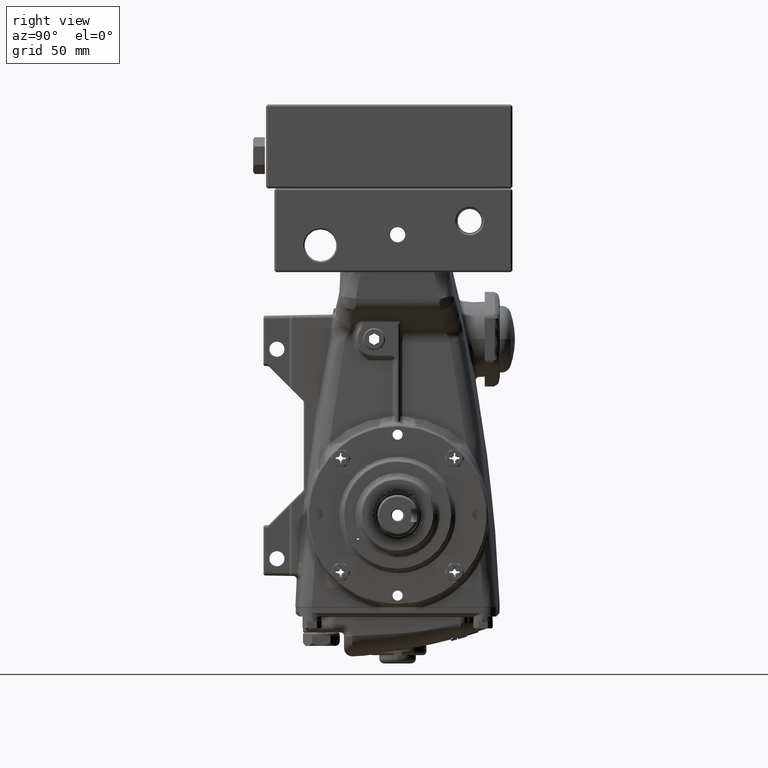
[diagram: clean part render]
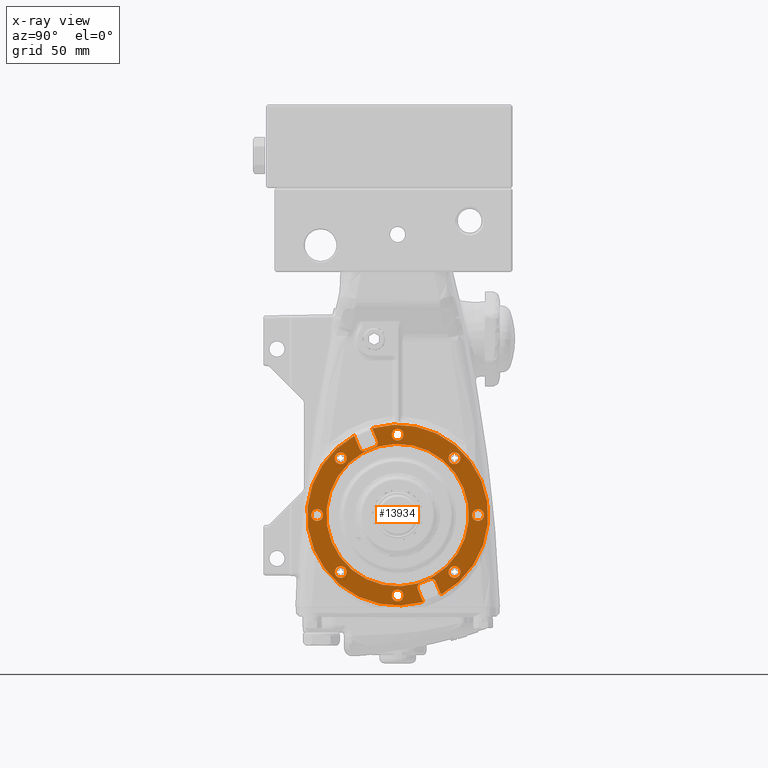
[diagram: x-ray — body ghosted, one internal face saturated and labeled with its STEP entity id]
A machine part, right view, then the same camera in x-ray: the body is ghosted and one INTERNAL B-rep face — a face not visible from any outside direction — is saturated and labeled: STEP entity #13934.
In plain terms, the highlighted planar face has unit normal (-1, -0, 0).
Its self-contained STEP definition (entity closure, byte-faithful):
#766 = CARTESIAN_POINT ( 'NONE',  ( -2.805118110236219930, 0.5982389119978016589, -2.040078244526362550 ) ) ;
#846 = AXIS2_PLACEMENT_3D ( 'NONE', #65064, #5091, #11079 ) ;
#878 = CARTESIAN_POINT ( 'NONE',  ( -2.805118110236219930, -0.4296690380452944380, 1.633114568622704654 ) ) ;
#1418 = VERTEX_POINT ( 'NONE', #84356 ) ;
#1812 = AXIS2_PLACEMENT_3D ( 'NONE', #84426, #77993, #45431 ) ;
#1854 = EDGE_CURVE ( 'NONE', #60243, #34778, #27479, .T. ) ;
#1889 = CARTESIAN_POINT ( 'NONE',  ( -2.805118110236220819, 0.7966903167711530953, -1.499902541564444913 ) ) ;
#2522 = ORIENTED_EDGE ( 'NONE', *, *, #1854, .T. ) ;
#2610 = ORIENTED_EDGE ( 'NONE', *, *, #15843, .F. ) ;
#2790 = VERTEX_POINT ( 'NONE', #36655 ) ;
#3188 = VECTOR ( 'NONE', #84690, 39.37007874015747433 ) ;
#3395 = AXIS2_PLACEMENT_3D ( 'NONE', #17099, #43227, #11506 ) ;
#3623 = DIRECTION ( 'NONE',  ( 0.000000000000000000, -0.9238795325112832968, -0.3826834323650982750 ) ) ;
#3645 = AXIS2_PLACEMENT_3D ( 'NONE', #65880, #39289, #14012 ) ;
#3659 = VERTEX_POINT ( 'NONE', #72611 ) ;
#4033 = CARTESIAN_POINT ( 'NONE',  ( -2.805118110236220375, 0.5024608755778987579, -1.618871198120541255 ) ) ;
#4179 = CIRCLE ( 'NONE', #13783, 2.125984251968504601 ) ;
#4376 = AXIS2_PLACEMENT_3D ( 'NONE', #35682, #42939, #55367 ) ;
#4477 = ORIENTED_EDGE ( 'NONE', *, *, #62575, .T. ) ;
#4650 = DIRECTION ( 'NONE',  ( 1.000000000000000000, 8.405717186409303061E-21, -8.060765882344338566E-24 ) ) ;
#4884 = CARTESIAN_POINT ( 'NONE',  ( -2.805118110236219042, 0.4687455187719541949, -1.675852245771079385 ) ) ;
#5069 = DIRECTION ( 'NONE',  ( -1.000000000000000000, -8.405717186409303061E-21, 8.060765882344338566E-24 ) ) ;
#5091 = DIRECTION ( 'NONE',  ( -1.000000000000000000, -8.405717186409303061E-21, 8.060765882344338566E-24 ) ) ;
#5126 = CIRCLE ( 'NONE', #52954, 0.1377952755905511584 ) ;
#5542 = CARTESIAN_POINT ( 'NONE',  ( -2.805118110236219042, -0.5278896200385078119, 1.601324303189067155 ) ) ;
#5920 = DIRECTION ( 'NONE',  ( 0.000000000000000000, -0.9238795325112834078, -0.3826834323650978309 ) ) ;
#6534 = EDGE_LOOP ( 'NONE', ( #24996, #72840, #72875, #30014, #81669, #65029, #17353, #73926, #69199, #18064, #22132, #77929, #2610, #26120 ) ) ;
#6741 = VERTEX_POINT ( 'NONE', #52335 ) ;
#6889 = LINE ( 'NONE', #878, #41531 ) ;
#7166 = EDGE_LOOP ( 'NONE', ( #12627, #65290 ) ) ;
#7466 = CARTESIAN_POINT ( 'NONE',  ( -2.805118110236219930, 0.8961633260542560819, -1.567727906219537948 ) ) ;
#7901 = CARTESIAN_POINT ( 'NONE',  ( -2.805118110236219930, 0.7525809116517298003, -1.508254122855739343 ) ) ;
#8006 = EDGE_CURVE ( 'NONE', #68518, #8920, #21918, .T. ) ;
#8332 = CARTESIAN_POINT ( 'NONE',  ( -2.805118110236220375, 0.7937784518801221934, -1.499889033315514375 ) ) ;
#8634 = CIRCLE ( 'NONE', #20917, 0.1377952755905511584 ) ;
#8920 = VERTEX_POINT ( 'NONE', #25522 ) ;
#9021 = CIRCLE ( 'NONE', #846, 0.1377952755905513804 ) ;
#9023 = CARTESIAN_POINT ( 'NONE',  ( -2.805118110236219042, -0.8776907401672228159, 1.537780332096876146 ) ) ;
#9079 = DIRECTION ( 'NONE',  ( -1.000000000000000000, -8.405717186409303061E-21, 8.060765882344338566E-24 ) ) ;
#9487 = VERTEX_POINT ( 'NONE', #72914 ) ;
#9569 = EDGE_LOOP ( 'NONE', ( #53719, #80649 ) ) ;
#10449 = CARTESIAN_POINT ( 'NONE',  ( -2.805118110236220375, 0.4719659194826886783, -1.665127671470700843 ) ) ;
#10500 = VERTEX_POINT ( 'NONE', #67323 ) ;
#11079 = DIRECTION ( 'NONE',  ( 0.000000000000000000, -0.9238795325112832968, -0.3826834323650982750 ) ) ;
#11409 = AXIS2_PLACEMENT_3D ( 'NONE', #44512, #33698, #12370 ) ;
#11506 = DIRECTION ( 'NONE',  ( 0.000000000000000000, -0.9238795325112834078, -0.3826834323650978309 ) ) ;
#12261 = CARTESIAN_POINT ( 'NONE',  ( -2.805118110236219930, 1.382349707395301792E-14, -1.889763779527558807 ) ) ;
#12370 = DIRECTION ( 'NONE',  ( 0.000000000000000000, -0.9238795325112832968, -0.3826834323650982750 ) ) ;
#12595 = VERTEX_POINT ( 'NONE', #26339 ) ;
#12627 = ORIENTED_EDGE ( 'NONE', *, *, #43698, .T. ) ;
#12735 = CARTESIAN_POINT ( 'NONE',  ( -2.805118110236219930, -5.187048927843652602E-16, 4.499273980378881328E-16 ) ) ;
#12786 = CARTESIAN_POINT ( 'NONE',  ( -2.805118110236220375, -0.4695174555425919438, 1.729317158583783431 ) ) ;
#12998 = AXIS2_PLACEMENT_3D ( 'NONE', #74928, #24393, #42816 ) ;
#13061 = DIRECTION ( 'NONE',  ( 7.762785343046501640E-21, -0.9238795325112835188, -0.3826834323650974423 ) ) ;
#13089 = EDGE_LOOP ( 'NONE', ( #17846, #60649 ) ) ;
#13772 = ORIENTED_EDGE ( 'NONE', *, *, #70496, .T. ) ;
#13783 = AXIS2_PLACEMENT_3D ( 'NONE', #36288, #43122, #36708 ) ;
#13934 = ADVANCED_FACE ( 'NONE', ( #63232, #30680, #29838, #76047, #82908, #17804, #17378, #55942, #23405, #50364 ), #83344, .F. ) ;
#14012 = DIRECTION ( 'NONE',  ( 0.000000000000000000, -0.9238795325112832968, -0.3826834323650982750 ) ) ;
#14105 = CARTESIAN_POINT ( 'NONE',  ( -2.805118110236219930, -0.6434612818275637913, 1.553452953450043195 ) ) ;
#14223 = CARTESIAN_POINT ( 'NONE',  ( -2.805118110236219930, -1.336264783344660145, 1.336264783344655260 ) ) ;
#14310 = CARTESIAN_POINT ( 'NONE',  ( -2.805118110236220819, 0.8630077542418997938, -1.522420121990075481 ) ) ;
#14394 = VERTEX_POINT ( 'NONE', #26191 ) ;
#14700 = VECTOR ( 'NONE', #66533, 39.37007874015747433 ) ;
#15470 = EDGE_CURVE ( 'NONE', #74941, #9487, #15486, .T. ) ;
#15486 = CIRCLE ( 'NONE', #1812, 0.1377952755905514637 ) ;
#15522 = VERTEX_POINT ( 'NONE', #76989 ) ;
#15660 = VERTEX_POINT ( 'NONE', #31622 ) ;
#15843 = EDGE_CURVE ( 'NONE', #8920, #79711, #50426, .T. ) ;
#16274 = CARTESIAN_POINT ( 'NONE',  ( -2.805118110236219930, -0.8886603636297760733, 1.552134443889572113 ) ) ;
#16412 = VERTEX_POINT ( 'NONE', #21062 ) ;
#16579 = VERTEX_POINT ( 'NONE', #47615 ) ;
#16677 = CARTESIAN_POINT ( 'NONE',  ( -2.805118110236219930, 1.208958548549786460, -1.388996752371351118 ) ) ;
#16788 = EDGE_LOOP ( 'NONE', ( #58046, #82523 ) ) ;
#16878 = CARTESIAN_POINT ( 'NONE',  ( -2.805118110236219930, 0.5011832535756733931, -1.620052868258357925 ) ) ;
#17099 = CARTESIAN_POINT ( 'NONE',  ( -2.805118110236219930, -1.889763779527559917, -6.789469785172409791E-15 ) ) ;
#17296 = CARTESIAN_POINT ( 'NONE',  ( -2.805118110236219042, 0.5090222683500221779, -1.613228176613129561 ) ) ;
#17340 = CIRCLE ( 'NONE', #3645, 0.1377952755905513804 ) ;
#17353 = ORIENTED_EDGE ( 'NONE', *, *, #22325, .F. ) ;
#17378 = FACE_BOUND ( 'NONE', #9569, .T. ) ;
#17724 = CARTESIAN_POINT ( 'NONE',  ( -2.805118110236220375, 0.5006029341915930742, -1.620601019136054255 ) ) ;
#17804 = FACE_BOUND ( 'NONE', #33279, .T. ) ;
#17846 = ORIENTED_EDGE ( 'NONE', *, *, #38418, .T. ) ;
#17910 = CARTESIAN_POINT ( 'NONE',  ( -2.805118110236219930, -1.889763779527559917, -6.789469785172409791E-15 ) ) ;
#17983 = ORIENTED_EDGE ( 'NONE', *, *, #18993, .T. ) ;
#18064 = ORIENTED_EDGE ( 'NONE', *, *, #32252, .F. ) ;
#18777 = ORIENTED_EDGE ( 'NONE', *, *, #34551, .T. ) ;
#18993 = EDGE_CURVE ( 'NONE', #10500, #6741, #17340, .T. ) ;
#19081 = VERTEX_POINT ( 'NONE', #66717 ) ;
#19122 = CARTESIAN_POINT ( 'NONE',  ( -2.805118110236219930, -0.8961633260542571922, 1.567727906219539058 ) ) ;
#19229 = CARTESIAN_POINT ( 'NONE',  ( -2.805118110236220375, -0.4664986269494753035, 1.700013705722139390 ) ) ;
#19232 = CIRCLE ( 'NONE', #4376, 2.125984251968504601 ) ;
#19319 = EDGE_CURVE ( 'NONE', #16579, #47486, #5126, .T. ) ;
#19888 = CARTESIAN_POINT ( 'NONE',  ( -2.805118110236220819, 0.8506937508156875438, -1.514058021169602419 ) ) ;
#20843 = EDGE_CURVE ( 'NONE', #47486, #16579, #61810, .T. ) ;
#20917 = AXIS2_PLACEMENT_3D ( 'NONE', #21208, #40480, #27253 ) ;
#21062 = CARTESIAN_POINT ( 'NONE',  ( -2.805118110236219930, -2.017070014322422278, -0.05273196902669349817 ) ) ;
#21108 = CARTESIAN_POINT ( 'NONE',  ( -2.805118110236219930, -3.821124931011520993E-16, 1.889763779527559695 ) ) ;
#21208 = CARTESIAN_POINT ( 'NONE',  ( -2.805118110236219930, 1.382349707395301792E-14, -1.889763779527558807 ) ) ;
#21412 = AXIS2_PLACEMENT_3D ( 'NONE', #12261, #26024, #70130 ) ;
#21465 = CARTESIAN_POINT ( 'NONE',  ( -2.805118110236220819, -0.8630077542419138936, 1.522420121990203601 ) ) ;
#21604 = CARTESIAN_POINT ( 'NONE',  ( -2.805118110236220375, 0.8742140909625281120, -1.533989188407728133 ) ) ;
#21918 = B_SPLINE_CURVE_WITH_KNOTS ( 'NONE', 3,
 ( #78159, #45588, #25078, #83316, #51167, #77302, #64470, #21604, #14310, #19888, #60589, #41295, #47300, #46881, #1889, #79857, #8332, #40451, #66589, #7901 ),
 .UNSPECIFIED., .F., .F.,
 ( 4, 1, 1, 1, 2, 2, 2, 1, 1, 1, 2, 2, 4 ),
 ( -1.000000000000000000, -0.8749999999999948930, -0.8124999999999915623, -0.7812499999999918954, -0.7656249999999938938, -0.7499999999999958922, -0.4999999999999921174, -0.3749999999999902300, -0.3124999999999892308, -0.2812499999999897859, -0.2656249999999901190, -0.2499999999999904521, -0.000000000000000000 ),
 .UNSPECIFIED. ) ;
#22132 = ORIENTED_EDGE ( 'NONE', *, *, #38584, .F. ) ;
#22307 = CARTESIAN_POINT ( 'NONE',  ( -2.805118110236219930, -0.8060633791159961259, 1.500356554118741581 ) ) ;
#22325 = EDGE_CURVE ( 'NONE', #80439, #1418, #84807, .T. ) ;
#23133 = CARTESIAN_POINT ( 'NONE',  ( -2.805118110236219930, -5.187048927843652602E-16, 4.499273980378881328E-16 ) ) ;
#23137 = ORIENTED_EDGE ( 'NONE', *, *, #78860, .F. ) ;
#23405 = FACE_BOUND ( 'NONE', #7166, .T. ) ;
#24161 = DIRECTION ( 'NONE',  ( 0.000000000000000000, -0.9238795325112832968, -0.3826834323650982750 ) ) ;
#24172 = CARTESIAN_POINT ( 'NONE',  ( -2.805118110236219930, -1.463571018139512070, -1.388996752371350674 ) ) ;
#24393 = DIRECTION ( 'NONE',  ( 1.000000000000000000, 8.405717186409303061E-21, -8.060765882344338566E-24 ) ) ;
#24602 = CARTESIAN_POINT ( 'NONE',  ( -2.805118110236220375, 0.5278896200383910164, -1.601324303189114229 ) ) ;
#24675 = CARTESIAN_POINT ( 'NONE',  ( -2.805118110236219930, -0.6403167667526242779, 1.545861422509038130 ) ) ;
#24913 = ORIENTED_EDGE ( 'NONE', *, *, #37908, .F. ) ;
#24996 = ORIENTED_EDGE ( 'NONE', *, *, #76521, .F. ) ;
#25078 = CARTESIAN_POINT ( 'NONE',  ( -2.805118110236219930, 0.8886603636298414655, -1.552134443889731097 ) ) ;
#25124 = DIRECTION ( 'NONE',  ( 0.000000000000000000, -0.9238795325112832968, -0.3826834323650982750 ) ) ;
#25394 = DIRECTION ( 'NONE',  ( 0.000000000000000000, -0.9238795325112831858, -0.3826834323650986636 ) ) ;
#25522 = CARTESIAN_POINT ( 'NONE',  ( -2.805118110236219930, 0.7525809116517298003, -1.508254122855739343 ) ) ;
#25699 = CARTESIAN_POINT ( 'NONE',  ( -2.805118110236220375, -0.5011832535757024809, 1.620052868258347933 ) ) ;
#26024 = DIRECTION ( 'NONE',  ( -1.000000000000000000, -8.405717186409303061E-21, 8.060765882344338566E-24 ) ) ;
#26120 = ORIENTED_EDGE ( 'NONE', *, *, #8006, .F. ) ;
#26191 = CARTESIAN_POINT ( 'NONE',  ( -2.805118110236219930, -0.4748678686395973458, 1.742234198446872107 ) ) ;
#26339 = CARTESIAN_POINT ( 'NONE',  ( -2.805118110236219930, 0.1273062347948757389, -1.837031810500872053 ) ) ;
#26547 = CARTESIAN_POINT ( 'NONE',  ( -2.805118110236219042, -0.5090222683501749446, 1.613228176613066944 ) ) ;
#27119 = CARTESIAN_POINT ( 'NONE',  ( -2.805118110236219930, -1.019534369412462560, 1.865571952299030611 ) ) ;
#27253 = DIRECTION ( 'NONE',  ( 0.000000000000000000, -0.9238795325112837409, -0.3826834323650968872 ) ) ;
#27479 = CIRCLE ( 'NONE', #75285, 0.1377952755905512416 ) ;
#28325 = DIRECTION ( 'NONE',  ( -1.000000000000000000, -8.405717186409303061E-21, 8.060765882344338566E-24 ) ) ;
#28391 = DIRECTION ( 'NONE',  ( 0.000000000000000000, -0.9238795325112837409, -0.3826834323650971093 ) ) ;
#29418 = CIRCLE ( 'NONE', #3395, 0.1377952755905512139 ) ;
#29755 = CARTESIAN_POINT ( 'NONE',  ( -2.805118110236219930, 0.4748678686395961801, -1.742234198446870996 ) ) ;
#29838 = FACE_BOUND ( 'NONE', #13089, .T. ) ;
#29865 = CARTESIAN_POINT ( 'NONE',  ( -2.805118110236219930, -0.5343416520033963391, 1.598651784044345936 ) ) ;
#30014 = ORIENTED_EDGE ( 'NONE', *, *, #53305, .F. ) ;
#30186 = CARTESIAN_POINT ( 'NONE',  ( -2.805118110236220819, 0.4667336186277542542, -1.715875604913376984 ) ) ;
#30558 = CARTESIAN_POINT ( 'NONE',  ( -2.805118110236219930, 1.463571018139510294, -1.283532814317977389 ) ) ;
#30599 = CARTESIAN_POINT ( 'NONE',  ( -2.805118110236220819, 0.4890338677738068629, -1.631807355857004094 ) ) ;
#30680 = FACE_OUTER_BOUND ( 'NONE', #6534, .T. ) ;
#30793 = AXIS2_PLACEMENT_3D ( 'NONE', #75845, #9079, #28391 ) ;
#30813 = EDGE_CURVE ( 'NONE', #58115, #75511, #78900, .T. ) ;
#30829 = ORIENTED_EDGE ( 'NONE', *, *, #30813, .T. ) ;
#30852 = ORIENTED_EDGE ( 'NONE', *, *, #20843, .T. ) ;
#31262 = CARTESIAN_POINT ( 'NONE',  ( -2.805118110236219930, -0.5006029341915808617, 1.620601019136075793 ) ) ;
#31622 = CARTESIAN_POINT ( 'NONE',  ( -2.805118110236219930, -0.5982389119978027692, 2.040078244526363882 ) ) ;
#31866 = AXIS2_PLACEMENT_3D ( 'NONE', #12735, #4650, #44038 ) ;
#32111 = CARTESIAN_POINT ( 'NONE',  ( -2.805118110236219930, -0.5343416520033963391, 1.598651784044345936 ) ) ;
#32252 = EDGE_CURVE ( 'NONE', #55787, #19081, #40757, .T. ) ;
#32730 = CARTESIAN_POINT ( 'NONE',  ( -2.805118110236219930, 0.4748678686395961801, -1.742234198446870996 ) ) ;
#32999 = DIRECTION ( 'NONE',  ( -7.762785343046504649E-21, 0.9238795325112836299, 0.3826834323650974978 ) ) ;
#33279 = EDGE_LOOP ( 'NONE', ( #13772, #17983 ) ) ;
#33698 = DIRECTION ( 'NONE',  ( -1.000000000000000000, -8.405717186409303061E-21, 8.060765882344338566E-24 ) ) ;
#33905 = CARTESIAN_POINT ( 'NONE',  ( -2.805118110236218598, -0.7948014043765199155, 1.499884881165633788 ) ) ;
#34551 = EDGE_CURVE ( 'NONE', #34778, #60243, #75197, .T. ) ;
#34687 = LINE ( 'NONE', #14105, #81779 ) ;
#34778 = VERTEX_POINT ( 'NONE', #43697 ) ;
#35174 = CARTESIAN_POINT ( 'NONE',  ( -2.805118110236219930, -0.7995167660445342550, 1.499964423507271549 ) ) ;
#35401 = ORIENTED_EDGE ( 'NONE', *, *, #19319, .T. ) ;
#35682 = CARTESIAN_POINT ( 'NONE',  ( -2.805118110236219930, -5.187048927843652602E-16, 4.499273980378881328E-16 ) ) ;
#36148 = LINE ( 'NONE', #47757, #40111 ) ;
#36273 = LINE ( 'NONE', #45223, #69747 ) ;
#36288 = CARTESIAN_POINT ( 'NONE',  ( -2.805118110236219930, -5.187048927843652602E-16, 4.499273980378881328E-16 ) ) ;
#36592 = CARTESIAN_POINT ( 'NONE',  ( -2.805118110236219930, 0.4665162873483129080, -1.698124793327421278 ) ) ;
#36655 = CARTESIAN_POINT ( 'NONE',  ( -2.805118110236219930, 1.019534369412461450, -1.865571952299029501 ) ) ;
#36708 = DIRECTION ( 'NONE',  ( 0.000000000000000000, -0.9238795325112835188, -0.3826834323650974423 ) ) ;
#37021 = CARTESIAN_POINT ( 'NONE',  ( -2.805118110236219042, 0.4665027790993739321, -1.701036658218486597 ) ) ;
#37862 = CARTESIAN_POINT ( 'NONE',  ( -2.805118110236219930, 0.5187481896733260323, -1.606154746468869021 ) ) ;
#37900 = EDGE_CURVE ( 'NONE', #16412, #46482, #60612, .T. ) ;
#37908 = EDGE_CURVE ( 'NONE', #15522, #65193, #66059, .T. ) ;
#38418 = EDGE_CURVE ( 'NONE', #12595, #3659, #8634, .T. ) ;
#38584 = EDGE_CURVE ( 'NONE', #84564, #55787, #36148, .T. ) ;
#38960 = CARTESIAN_POINT ( 'NONE',  ( -2.805118110236219930, -1.762457544732698000, 0.05273196902667992569 ) ) ;
#39289 = DIRECTION ( 'NONE',  ( -1.000000000000000000, -8.405717186409303061E-21, 8.060765882344338566E-24 ) ) ;
#39388 = AXIS2_PLACEMENT_3D ( 'NONE', #23133, #28325, #56089 ) ;
#39522 = AXIS2_PLACEMENT_3D ( 'NONE', #21108, #79372, #25124 ) ;
#39846 = DIRECTION ( 'NONE',  ( 3.224175881000559783E-21, -0.3826834323650974978, 0.9238795325112836299 ) ) ;
#40111 = VECTOR ( 'NONE', #62293, 39.37007874015747433 ) ;
#40382 = CIRCLE ( 'NONE', #30793, 0.1377952755905514637 ) ;
#40451 = CARTESIAN_POINT ( 'NONE',  ( -2.805118110236220819, 0.7789395051851045748, -1.500119872843947322 ) ) ;
#40480 = DIRECTION ( 'NONE',  ( -1.000000000000000000, -8.405717186409303061E-21, 8.060765882344338566E-24 ) ) ;
#40757 = CIRCLE ( 'NONE', #39388, 2.125984251968504601 ) ;
#41171 = CARTESIAN_POINT ( 'NONE',  ( -2.805118110236220819, -0.8742140909625284451, 1.533989188407721027 ) ) ;
#41295 = CARTESIAN_POINT ( 'NONE',  ( -2.805118110236219930, 0.8189628643274170505, -1.502131772988054115 ) ) ;
#41351 = CARTESIAN_POINT ( 'NONE',  ( -2.805118110236219930, 0.1273062347948616668, 1.942495748554246449 ) ) ;
#41531 = VECTOR ( 'NONE', #39846, 39.37007874015747433 ) ;
#41583 = CARTESIAN_POINT ( 'NONE',  ( -2.805118110236219930, -0.7525809116517311326, 1.508254122855740231 ) ) ;
#42411 = B_SPLINE_CURVE_WITH_KNOTS ( 'NONE', 3,
 ( #70427, #24602, #37862, #17296, #50702, #4033, #16878, #17724, #30599, #44697, #10449, #4884, #43858, #83693, #36592, #49435, #37021, #30186, #43018, #29755 ),
 .UNSPECIFIED., .F., .F.,
 ( 4, 1, 1, 1, 2, 2, 2, 1, 1, 1, 2, 2, 4 ),
 ( -1.000000000000000000, -0.8749999999999970024, -0.8124999999999954481, -0.7812499999999951150, -0.7656249999999945599, -0.7499999999999940048, -0.5000000000000096589, -0.3750000000000175415, -0.3125000000000214273, -0.2812500000000233147, -0.2656250000000220934, -0.2500000000000208722, -0.000000000000000000 ),
 .UNSPECIFIED. ) ;
#42417 = CARTESIAN_POINT ( 'NONE',  ( -2.805118110236219930, -0.7966903167713099698, 1.499902541564482217 ) ) ;
#42816 = DIRECTION ( 'NONE',  ( 0.000000000000000000, -0.9238795325112836299, -0.3826834323650974978 ) ) ;
#42939 = DIRECTION ( 'NONE',  ( -1.000000000000000000, -8.405717186409303061E-21, 8.060765882344338566E-24 ) ) ;
#43018 = CARTESIAN_POINT ( 'NONE',  ( -2.805118110236219930, 0.4695174555425660756, -1.729317158583723035 ) ) ;
#43122 = DIRECTION ( 'NONE',  ( -1.000000000000000000, -8.405717186409303061E-21, 8.060765882344338566E-24 ) ) ;
#43227 = DIRECTION ( 'NONE',  ( -1.000000000000000000, -8.405717186409303061E-21, 8.060765882344338566E-24 ) ) ;
#43697 = CARTESIAN_POINT ( 'NONE',  ( -2.805118110236219930, -1.208958548549788015, -1.283532814317976944 ) ) ;
#43698 = EDGE_CURVE ( 'NONE', #46482, #16412, #29418, .T. ) ;
#43858 = CARTESIAN_POINT ( 'NONE',  ( -2.805118110236219930, 0.4669702999025260870, -1.688751730982972488 ) ) ;
#44038 = DIRECTION ( 'NONE',  ( 0.000000000000000000, -0.9238795325112836299, -0.3826834323650974978 ) ) ;
#44127 = DIRECTION ( 'NONE',  ( 0.000000000000000000, -0.9238795325112835188, -0.3826834323650974423 ) ) ;
#44231 = B_SPLINE_CURVE_WITH_KNOTS ( 'NONE', 3,
 ( #32111, #5542, #65938, #26547, #51353, #78765, #25699, #31262, #50924, #77484, #65519, #71941, #77054, #51789, #57365, #19229, #77916, #71518, #12786, #64236 ),
 .UNSPECIFIED., .F., .F.,
 ( 4, 1, 1, 1, 2, 2, 2, 1, 1, 1, 2, 2, 4 ),
 ( -1.000000000000000000, -0.8749999999999982236, -0.8124999999999987788, -0.7812499999999974465, -0.7656249999999963363, -0.7499999999999952260, -0.4999999999999876765, -0.3749999999999856781, -0.3124999999999847899, -0.2812499999999866773, -0.2656249999999898970, -0.2499999999999932276, -0.000000000000000000 ),
 .UNSPECIFIED. ) ;
#44290 = CARTESIAN_POINT ( 'NONE',  ( -2.805118110236219930, 1.964153336835012365, 0.8135789506974521190 ) ) ;
#44305 = EDGE_LOOP ( 'NONE', ( #30852, #35401 ) ) ;
#44512 = CARTESIAN_POINT ( 'NONE',  ( -2.805118110236219930, -3.821124931011520993E-16, 1.889763779527559695 ) ) ;
#44685 = DIRECTION ( 'NONE',  ( -1.000000000000000000, -8.405717186409303061E-21, 8.060765882344338566E-24 ) ) ;
#44697 = CARTESIAN_POINT ( 'NONE',  ( -2.805118110236220375, 0.4806717669534093518, -1.644121359283034600 ) ) ;
#45223 = CARTESIAN_POINT ( 'NONE',  ( -2.805118110236219930, -0.4296690380452944380, 1.633114568622704654 ) ) ;
#45344 = CIRCLE ( 'NONE', #71363, 0.1377952755905513804 ) ;
#45431 = DIRECTION ( 'NONE',  ( 0.000000000000000000, -0.9238795325112837409, -0.3826834323650971093 ) ) ;
#45588 = CARTESIAN_POINT ( 'NONE',  ( -2.805118110236219930, 0.8934908069095487404, -1.561275874254683949 ) ) ;
#45852 = CIRCLE ( 'NONE', #12998, 1.673228346456692828 ) ;
#46215 = CIRCLE ( 'NONE', #51637, 2.125984251968504601 ) ;
#46482 = VERTEX_POINT ( 'NONE', #38960 ) ;
#46828 = LINE ( 'NONE', #66968, #14700 ) ;
#46881 = CARTESIAN_POINT ( 'NONE',  ( -2.805118110236219930, 0.7995167660442732416, -1.499964423507209155 ) ) ;
#47140 = VERTEX_POINT ( 'NONE', #27119 ) ;
#47300 = CARTESIAN_POINT ( 'NONE',  ( -2.805118110236219930, 0.8060633791155502603, -1.500356554118635888 ) ) ;
#47486 = VERTEX_POINT ( 'NONE', #56138 ) ;
#47511 = EDGE_CURVE ( 'NONE', #73194, #2790, #46215, .T. ) ;
#47615 = CARTESIAN_POINT ( 'NONE',  ( -2.805118110236219930, -1.208958548549798229, 1.388996752371341792 ) ) ;
#47757 = CARTESIAN_POINT ( 'NONE',  ( -2.805118110236219930, -0.8509644954599542288, 1.458608276395371606 ) ) ;
#48017 = CARTESIAN_POINT ( 'NONE',  ( -2.805118110236220375, -0.8296874386281799518, 1.505352173698887519 ) ) ;
#49435 = CARTESIAN_POINT ( 'NONE',  ( -2.805118110236219930, 0.4664986269494772464, -1.700013705722149826 ) ) ;
#49514 = DIRECTION ( 'NONE',  ( -1.000000000000000000, -8.405717186409266950E-21, 8.060765882359014613E-24 ) ) ;
#50364 = FACE_BOUND ( 'NONE', #51257, .T. ) ;
#50426 = LINE ( 'NONE', #58548, #3188 ) ;
#50702 = CARTESIAN_POINT ( 'NONE',  ( -2.805118110236220375, 0.5043940778806883518, -1.617124369931397965 ) ) ;
#50924 = CARTESIAN_POINT ( 'NONE',  ( -2.805118110236220375, -0.4890338677740139750, 1.631807355856664810 ) ) ;
#51167 = CARTESIAN_POINT ( 'NONE',  ( -2.805118110236220375, 0.8776907401672512377, -1.537780332096945646 ) ) ;
#51257 = EDGE_LOOP ( 'NONE', ( #2522, #18777 ) ) ;
#51353 = CARTESIAN_POINT ( 'NONE',  ( -2.805118110236219930, -0.5043940778807777248, 1.617124369931361771 ) ) ;
#51637 = AXIS2_PLACEMENT_3D ( 'NONE', #57406, #63008, #44127 ) ;
#51789 = CARTESIAN_POINT ( 'NONE',  ( -2.805118110236220375, -0.4665781692910763723, 1.695298344054246842 ) ) ;
#51831 = EDGE_CURVE ( 'NONE', #54830, #52422, #65554, .T. ) ;
#52335 = CARTESIAN_POINT ( 'NONE',  ( -2.805118110236219930, 1.208958548549797118, 1.283532814317967841 ) ) ;
#52422 = VERTEX_POINT ( 'NONE', #53740 ) ;
#52954 = AXIS2_PLACEMENT_3D ( 'NONE', #14223, #53631, #72506 ) ;
#53305 = EDGE_CURVE ( 'NONE', #14394, #15660, #36273, .T. ) ;
#53580 = CARTESIAN_POINT ( 'NONE',  ( -2.805118110236219930, -0.8961633260542571922, 1.567727906219539058 ) ) ;
#53631 = DIRECTION ( 'NONE',  ( -1.000000000000000000, -8.405717186409303061E-21, 8.060765882344338566E-24 ) ) ;
#53708 = DIRECTION ( 'NONE',  ( 0.000000000000000000, -0.9238795325112831858, -0.3826834323650986636 ) ) ;
#53719 = ORIENTED_EDGE ( 'NONE', *, *, #51831, .T. ) ;
#53740 = CARTESIAN_POINT ( 'NONE',  ( -2.805118110236219930, -0.1273062347948624162, 1.837031810500873164 ) ) ;
#54226 = CIRCLE ( 'NONE', #21412, 0.1377952755905511584 ) ;
#54574 = EDGE_CURVE ( 'NONE', #19081, #47140, #4179, .T. ) ;
#54830 = VERTEX_POINT ( 'NONE', #41351 ) ;
#54850 = CARTESIAN_POINT ( 'NONE',  ( -2.805118110236219930, -0.8189628643280113529, 1.502131772988194225 ) ) ;
#55367 = DIRECTION ( 'NONE',  ( 0.000000000000000000, -0.9238795325112835188, -0.3826834323650974423 ) ) ;
#55787 = VERTEX_POINT ( 'NONE', #766 ) ;
#55942 = FACE_BOUND ( 'NONE', #44305, .T. ) ;
#56089 = DIRECTION ( 'NONE',  ( 0.000000000000000000, -0.9238795325112835188, -0.3826834323650974423 ) ) ;
#56138 = CARTESIAN_POINT ( 'NONE',  ( -2.805118110236219930, -1.463571018139522062, 1.283532814317968729 ) ) ;
#57198 = EDGE_CURVE ( 'NONE', #1418, #59797, #34687, .T. ) ;
#57365 = CARTESIAN_POINT ( 'NONE',  ( -2.805118110236220819, -0.4665162873483075789, 1.698124793327401072 ) ) ;
#57406 = CARTESIAN_POINT ( 'NONE',  ( -2.805118110236219930, -5.187048927843652602E-16, 4.499273980378881328E-16 ) ) ;
#57501 = CARTESIAN_POINT ( 'NONE',  ( -2.805118110236219930, -1.336264783344650153, -1.336264783344663698 ) ) ;
#57705 = EDGE_LOOP ( 'NONE', ( #4477, #30829 ) ) ;
#58046 = ORIENTED_EDGE ( 'NONE', *, *, #69383, .T. ) ;
#58115 = VERTEX_POINT ( 'NONE', #30558 ) ;
#58548 = CARTESIAN_POINT ( 'NONE',  ( -2.805118110236219930, 0.6434612818275625701, -1.553452953450042084 ) ) ;
#59599 = CARTESIAN_POINT ( 'NONE',  ( -2.805118110236219930, 0.5343416520033951178, -1.598651784044344826 ) ) ;
#59797 = VERTEX_POINT ( 'NONE', #29865 ) ;
#60035 = CARTESIAN_POINT ( 'NONE',  ( -2.805118110236220375, -0.7654979515151527636, 1.502903709758597106 ) ) ;
#60168 = CARTESIAN_POINT ( 'NONE',  ( -2.805118110236219930, -1.336264783344650153, -1.336264783344663698 ) ) ;
#60220 = EDGE_CURVE ( 'NONE', #79711, #84564, #42411, .T. ) ;
#60243 = VERTEX_POINT ( 'NONE', #24172 ) ;
#60472 = AXIS2_PLACEMENT_3D ( 'NONE', #24675, #49514, #13061 ) ;
#60589 = CARTESIAN_POINT ( 'NONE',  ( -2.805118110236220819, 0.8296874386278401126, -1.505352173698807361 ) ) ;
#60612 = CIRCLE ( 'NONE', #70141, 0.1377952755905512139 ) ;
#60649 = ORIENTED_EDGE ( 'NONE', *, *, #80387, .T. ) ;
#61715 = CARTESIAN_POINT ( 'NONE',  ( -2.805118110236220819, -0.8759439119780715322, 1.535847129794069232 ) ) ;
#61810 = CIRCLE ( 'NONE', #74102, 0.1377952755905511584 ) ;
#62293 = DIRECTION ( 'NONE',  ( -3.224175881000559783E-21, 0.3826834323650974978, -0.9238795325112836299 ) ) ;
#62575 = EDGE_CURVE ( 'NONE', #75511, #58115, #45344, .T. ) ;
#62895 = EDGE_CURVE ( 'NONE', #15660, #73194, #19232, .T. ) ;
#63008 = DIRECTION ( 'NONE',  ( -1.000000000000000000, -8.405717186409303061E-21, 8.060765882344338566E-24 ) ) ;
#63177 = DIRECTION ( 'NONE',  ( -1.000000000000000000, -8.405717186409303061E-21, 8.060765882344338566E-24 ) ) ;
#63232 = FACE_BOUND ( 'NONE', #79719, .T. ) ;
#64203 = CARTESIAN_POINT ( 'NONE',  ( -2.805118110236219930, -1.336264783344660145, 1.336264783344655260 ) ) ;
#64236 = CARTESIAN_POINT ( 'NONE',  ( -2.805118110236219930, -0.4748678686395973458, 1.742234198446872107 ) ) ;
#64470 = CARTESIAN_POINT ( 'NONE',  ( -2.805118110236219930, 0.8747622418402570821, -1.534569507791852194 ) ) ;
#65029 = ORIENTED_EDGE ( 'NONE', *, *, #57198, .F. ) ;
#65064 = CARTESIAN_POINT ( 'NONE',  ( -2.805118110236219930, 1.336264783344659035, 1.336264783344654816 ) ) ;
#65193 = VERTEX_POINT ( 'NONE', #80621 ) ;
#65290 = ORIENTED_EDGE ( 'NONE', *, *, #37900, .T. ) ;
#65519 = CARTESIAN_POINT ( 'NONE',  ( -2.805118110236220819, -0.4719659194826761883, 1.665127671470655768 ) ) ;
#65554 = CIRCLE ( 'NONE', #39522, 0.1377952755905513804 ) ;
#65653 = DIRECTION ( 'NONE',  ( -1.000000000000000000, -8.405717186409303061E-21, 8.060765882344338566E-24 ) ) ;
#65880 = CARTESIAN_POINT ( 'NONE',  ( -2.805118110236219930, 1.336264783344659035, 1.336264783344654816 ) ) ;
#65938 = CARTESIAN_POINT ( 'NONE',  ( -2.805118110236219042, -0.5187481896735298692, 1.606154746468785088 ) ) ;
#66059 = CIRCLE ( 'NONE', #31866, 1.673228346456692828 ) ;
#66167 = DIRECTION ( 'NONE',  ( -1.000000000000000000, -8.405717186409303061E-21, 8.060765882344338566E-24 ) ) ;
#66533 = DIRECTION ( 'NONE',  ( -3.224175881000559783E-21, 0.3826834323650974978, -0.9238795325112836299 ) ) ;
#66589 = CARTESIAN_POINT ( 'NONE',  ( -2.805118110236220819, 0.7654979515147586344, -1.502903709758759199 ) ) ;
#66717 = CARTESIAN_POINT ( 'NONE',  ( -2.805118110236219930, -1.964153336835013475, -0.8135789506974513419 ) ) ;
#66968 = CARTESIAN_POINT ( 'NONE',  ( -2.805118110236219930, -0.8509644954599542288, 1.458608276395371606 ) ) ;
#67305 = CARTESIAN_POINT ( 'NONE',  ( -2.805118110236219930, -0.8747622418402495326, 1.534569507791831766 ) ) ;
#67323 = CARTESIAN_POINT ( 'NONE',  ( -2.805118110236219930, 1.463571018139521396, 1.388996752371341570 ) ) ;
#68477 = CARTESIAN_POINT ( 'NONE',  ( -2.805118110236219930, 1.762457544732696890, -0.05273196902669363001 ) ) ;
#68518 = VERTEX_POINT ( 'NONE', #7466 ) ;
#69199 = ORIENTED_EDGE ( 'NONE', *, *, #54574, .F. ) ;
#69383 = EDGE_CURVE ( 'NONE', #9487, #74941, #40382, .T. ) ;
#69747 = VECTOR ( 'NONE', #71378, 39.37007874015747433 ) ;
#70130 = DIRECTION ( 'NONE',  ( 0.000000000000000000, -0.9238795325112837409, -0.3826834323650968872 ) ) ;
#70141 = AXIS2_PLACEMENT_3D ( 'NONE', #17910, #5069, #5920 ) ;
#70199 = DIRECTION ( 'NONE',  ( 0.000000000000000000, -0.9238795325112837409, -0.3826834323650968872 ) ) ;
#70427 = CARTESIAN_POINT ( 'NONE',  ( -2.805118110236219930, 0.5343416520033951178, -1.598651784044344826 ) ) ;
#70496 = EDGE_CURVE ( 'NONE', #6741, #10500, #9021, .T. ) ;
#71363 = AXIS2_PLACEMENT_3D ( 'NONE', #81571, #63177, #3623 ) ;
#71378 = DIRECTION ( 'NONE',  ( 3.224175881000559783E-21, -0.3826834323650974978, 0.9238795325112836299 ) ) ;
#71518 = CARTESIAN_POINT ( 'NONE',  ( -2.805118110236219930, -0.4667336186277802335, 1.715875604913436936 ) ) ;
#71941 = CARTESIAN_POINT ( 'NONE',  ( -2.805118110236220375, -0.4687455187719317684, 1.675852245770999005 ) ) ;
#72506 = DIRECTION ( 'NONE',  ( 0.000000000000000000, -0.9238795325112837409, -0.3826834323650968872 ) ) ;
#72611 = CARTESIAN_POINT ( 'NONE',  ( -2.805118110236219930, -0.1273062347948480666, -1.942495748554245338 ) ) ;
#72840 = ORIENTED_EDGE ( 'NONE', *, *, #47511, .F. ) ;
#72875 = ORIENTED_EDGE ( 'NONE', *, *, #62895, .F. ) ;
#72914 = CARTESIAN_POINT ( 'NONE',  ( -2.805118110236219930, 2.017070014322421390, 0.05273196902667992569 ) ) ;
#73194 = VERTEX_POINT ( 'NONE', #44290 ) ;
#73926 = ORIENTED_EDGE ( 'NONE', *, *, #84648, .F. ) ;
#74102 = AXIS2_PLACEMENT_3D ( 'NONE', #64203, #76171, #70199 ) ;
#74109 = EDGE_CURVE ( 'NONE', #52422, #54830, #83953, .T. ) ;
#74137 = CARTESIAN_POINT ( 'NONE',  ( -2.805118110236219042, -0.7789395051854984819, 1.500119872843785007 ) ) ;
#74928 = CARTESIAN_POINT ( 'NONE',  ( -2.805118110236219930, -5.187048927843652602E-16, 4.499273980378881328E-16 ) ) ;
#74941 = VERTEX_POINT ( 'NONE', #68477 ) ;
#75197 = CIRCLE ( 'NONE', #80664, 0.1377952755905512416 ) ;
#75285 = AXIS2_PLACEMENT_3D ( 'NONE', #60168, #66167, #53708 ) ;
#75511 = VERTEX_POINT ( 'NONE', #16677 ) ;
#75845 = CARTESIAN_POINT ( 'NONE',  ( -2.805118110236219930, 1.889763779527559251, -6.926062184855622656E-15 ) ) ;
#76047 = FACE_BOUND ( 'NONE', #57705, .T. ) ;
#76171 = DIRECTION ( 'NONE',  ( -1.000000000000000000, -8.405717186409303061E-21, 8.060765882344338566E-24 ) ) ;
#76521 = EDGE_CURVE ( 'NONE', #2790, #68518, #6889, .T. ) ;
#76989 = CARTESIAN_POINT ( 'NONE',  ( -2.805118110236219930, -1.545861422509038130, -0.6403167667526233897 ) ) ;
#77054 = CARTESIAN_POINT ( 'NONE',  ( -2.805118110236219930, -0.4669702999025094892, 1.688751730982912314 ) ) ;
#77302 = CARTESIAN_POINT ( 'NONE',  ( -2.805118110236219930, 0.8759439119780877414, -1.535847129794110533 ) ) ;
#77484 = CARTESIAN_POINT ( 'NONE',  ( -2.805118110236219042, -0.4806717669534374959, 1.644121359283127637 ) ) ;
#77541 = AXIS2_PLACEMENT_3D ( 'NONE', #83252, #44685, #24161 ) ;
#77916 = CARTESIAN_POINT ( 'NONE',  ( -2.805118110236219930, -0.4665027790993736545, 1.701036658218484154 ) ) ;
#77929 = ORIENTED_EDGE ( 'NONE', *, *, #60220, .F. ) ;
#77993 = DIRECTION ( 'NONE',  ( -1.000000000000000000, -8.405717186409303061E-21, 8.060765882344338566E-24 ) ) ;
#78159 = CARTESIAN_POINT ( 'NONE',  ( -2.805118110236219930, 0.8961633260542560819, -1.567727906219537948 ) ) ;
#78765 = CARTESIAN_POINT ( 'NONE',  ( -2.805118110236219930, -0.5024608755779531588, 1.618871198120520827 ) ) ;
#78860 = EDGE_CURVE ( 'NONE', #65193, #15522, #45852, .T. ) ;
#78900 = CIRCLE ( 'NONE', #77541, 0.1377952755905513804 ) ;
#79372 = DIRECTION ( 'NONE',  ( -1.000000000000000000, -8.405717186409303061E-21, 8.060765882344338566E-24 ) ) ;
#79711 = VERTEX_POINT ( 'NONE', #59599 ) ;
#79719 = EDGE_LOOP ( 'NONE', ( #24913, #23137 ) ) ;
#79725 = CARTESIAN_POINT ( 'NONE',  ( -2.805118110236219042, -0.7937784518800982125, 1.499889033315524811 ) ) ;
#79857 = CARTESIAN_POINT ( 'NONE',  ( -2.805118110236219042, 0.7948014043764366487, -1.499884881165614692 ) ) ;
#80043 = EDGE_CURVE ( 'NONE', #59797, #14394, #44231, .T. ) ;
#80136 = CARTESIAN_POINT ( 'NONE',  ( -2.805118110236219042, -0.8815869334855043205, 1.542408522566242057 ) ) ;
#80387 = EDGE_CURVE ( 'NONE', #3659, #12595, #54226, .T. ) ;
#80439 = VERTEX_POINT ( 'NONE', #19122 ) ;
#80556 = CARTESIAN_POINT ( 'NONE',  ( -2.805118110236220375, -0.8506937508150103078, 1.514058021169444102 ) ) ;
#80621 = CARTESIAN_POINT ( 'NONE',  ( -2.805118110236219930, 1.545861422509037020, 0.6403167667526242779 ) ) ;
#80649 = ORIENTED_EDGE ( 'NONE', *, *, #74109, .T. ) ;
#80664 = AXIS2_PLACEMENT_3D ( 'NONE', #57501, #65653, #25394 ) ;
#80957 = CARTESIAN_POINT ( 'NONE',  ( -2.805118110236219930, -0.8934908069095118810, 1.561275874254593798 ) ) ;
#81571 = CARTESIAN_POINT ( 'NONE',  ( -2.805118110236219930, 1.336264783344648599, -1.336264783344664364 ) ) ;
#81669 = ORIENTED_EDGE ( 'NONE', *, *, #80043, .F. ) ;
#81779 = VECTOR ( 'NONE', #32999, 39.37007874015747433 ) ;
#82523 = ORIENTED_EDGE ( 'NONE', *, *, #15470, .T. ) ;
#82908 = FACE_BOUND ( 'NONE', #16788, .T. ) ;
#83252 = CARTESIAN_POINT ( 'NONE',  ( -2.805118110236219930, 1.336264783344648599, -1.336264783344664364 ) ) ;
#83316 = CARTESIAN_POINT ( 'NONE',  ( -2.805118110236219930, 0.8815869334855531703, -1.542408522566362183 ) ) ;
#83344 = PLANE ( 'NONE',  #60472 ) ;
#83693 = CARTESIAN_POINT ( 'NONE',  ( -2.805118110236219930, 0.4665781692910859202, -1.695298344054283035 ) ) ;
#83953 = CIRCLE ( 'NONE', #11409, 0.1377952755905513804 ) ;
#84356 = CARTESIAN_POINT ( 'NONE',  ( -2.805118110236219930, -0.7525809116517311326, 1.508254122855740231 ) ) ;
#84426 = CARTESIAN_POINT ( 'NONE',  ( -2.805118110236219930, 1.889763779527559251, -6.926062184855622656E-15 ) ) ;
#84564 = VERTEX_POINT ( 'NONE', #32730 ) ;
#84648 = EDGE_CURVE ( 'NONE', #47140, #80439, #46828, .T. ) ;
#84690 = DIRECTION ( 'NONE',  ( 7.762785343046504649E-21, -0.9238795325112836299, -0.3826834323650974978 ) ) ;
#84807 = B_SPLINE_CURVE_WITH_KNOTS ( 'NONE', 3,
 ( #53580, #80957, #16274, #80136, #9023, #61715, #67305, #41171, #21465, #80556, #48017, #54850, #22307, #35174, #42417, #33905, #79725, #74137, #60035, #41583 ),
 .UNSPECIFIED., .F., .F.,
 ( 4, 1, 1, 1, 2, 2, 2, 1, 1, 1, 2, 2, 4 ),
 ( -1.000000000000000000, -0.8749999999999898970, -0.8124999999999820144, -0.7812499999999789058, -0.7656249999999773515, -0.7499999999999757971, -0.4999999999999779066, -0.3749999999999771294, -0.3124999999999766853, -0.2812499999999764633, -0.2656249999999775735, -0.2499999999999786837, -0.000000000000000000 ),
 .UNSPECIFIED. ) ;